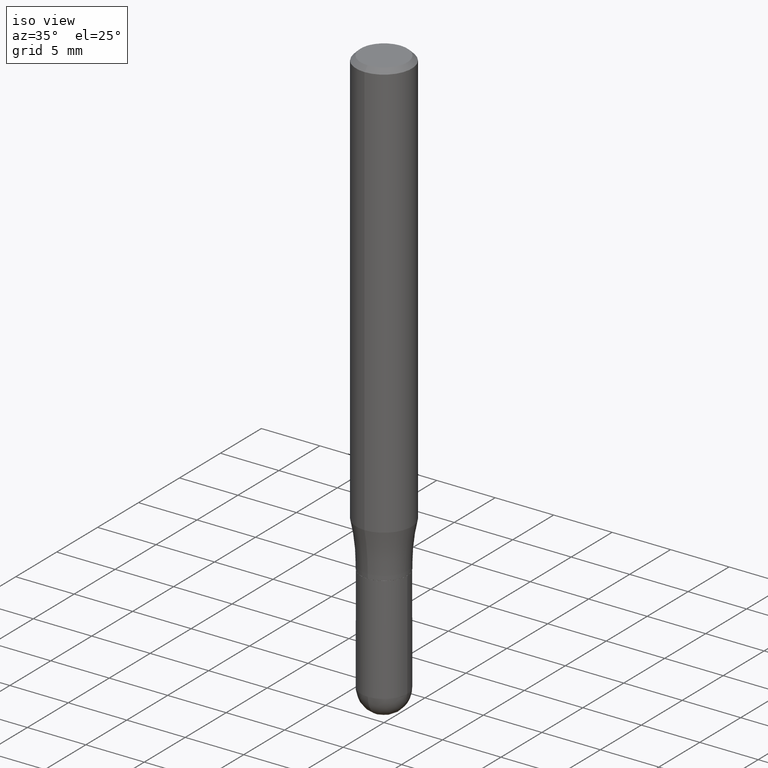
[diagram: clean part render]
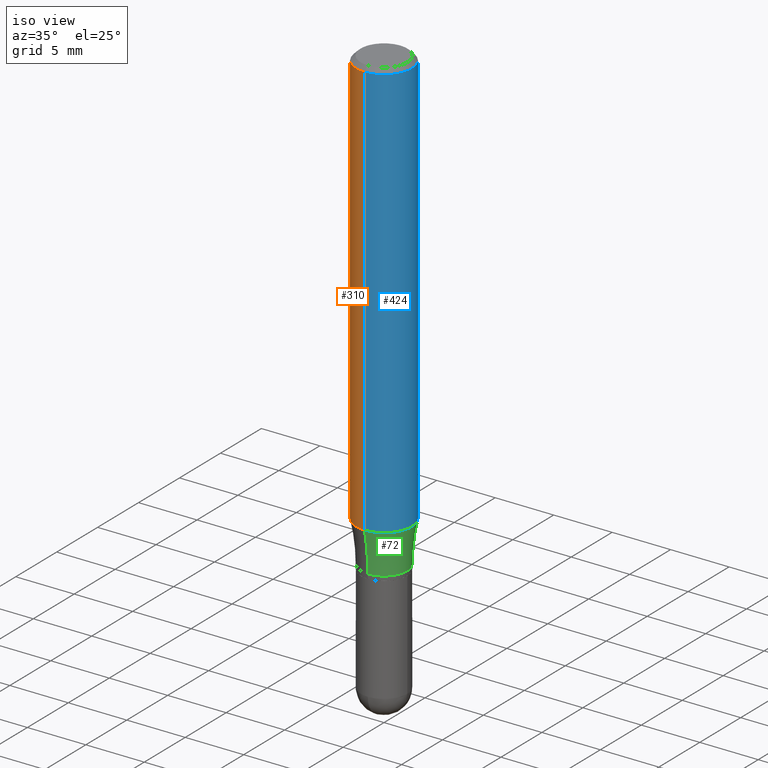
[diagram: same view with three faces highlighted in distinct colors, each labeled with its STEP entity id]
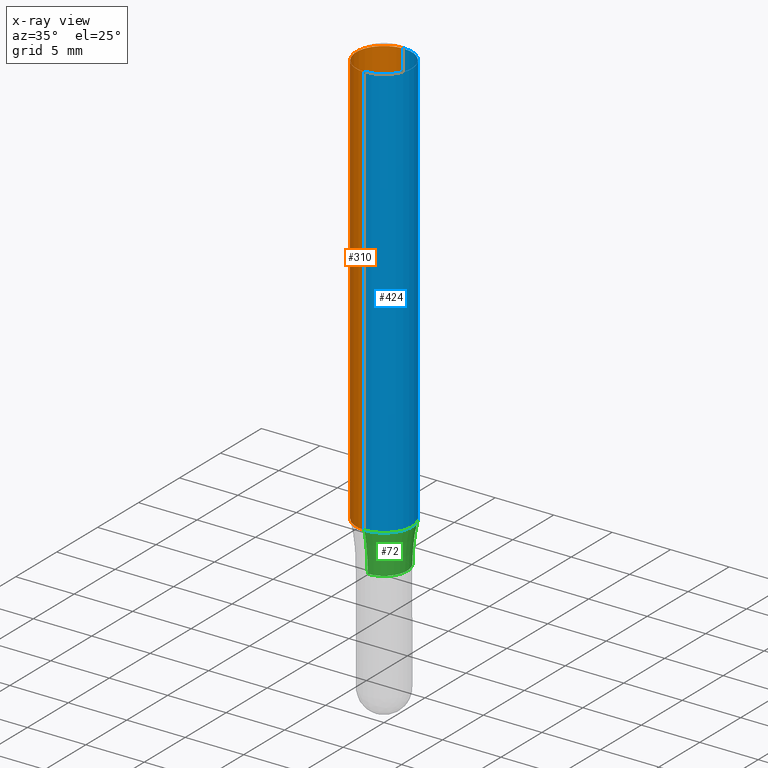
[diagram: x-ray of the same camera — body ghosted, the three highlighted faces saturated]
A machine part, iso view with three faces highlighted in distinct colors.
The next image is the same camera in x-ray (body ghosted, the three faces saturated) — at least one of them is partly hidden behind the body in this view.
Their STEP definitions:

[orange] entity #310 — the highlighted cylindrical surface (edge-blend (fillet) strip) has radius 2.3812 mm, axis along (-0, 0, 1).
#6 = FACE_OUTER_BOUND ( 'NONE', #437, .T. ) ;
#23 = VECTOR ( 'NONE', #249, 39.37007874015748143 ) ;
#59 = LINE ( 'NONE', #179, #23 ) ;
#74 = VERTEX_POINT ( 'NONE', #173 ) ;
#76 = ORIENTED_EDGE ( 'NONE', *, *, #467, .T. ) ;
#92 = CARTESIAN_POINT ( 'NONE',  ( 0.000000000000000000, 0.000000000000000000, 0.000000000000000000 ) ) ;
#96 = AXIS2_PLACEMENT_3D ( 'NONE', #485, #449, #451 ) ;
#129 = CYLINDRICAL_SURFACE ( 'NONE', #445, 0.09374999999999998612 ) ;
#136 = VECTOR ( 'NONE', #399, 39.37007874015748143 ) ;
#149 = ORIENTED_EDGE ( 'NONE', *, *, #495, .F. ) ;
#172 = CARTESIAN_POINT ( 'NONE',  ( 6.546527510330877999E-16, 0.09374999999999994449, -0.01500000000000052854 ) ) ;
#173 = CARTESIAN_POINT ( 'NONE',  ( 6.661338147751289300E-16, 0.09374999999999510114, -1.409012311696322239 ) ) ;
#175 = DIRECTION ( 'NONE',  ( -2.448354798421115077E-29, 3.487348433700747315E-15, 1.000000000000000000 ) ) ;
#177 = CARTESIAN_POINT ( 'NONE',  ( 3.672532197631722186E-31, -5.231022650551191994E-17, -0.01500000000000020241 ) ) ;
#179 = CARTESIAN_POINT ( 'NONE',  ( -6.546527510330874055E-16, -0.09374999999999998612, 3.269389156594450115E-16 ) ) ;
#207 = CARTESIAN_POINT ( 'NONE',  ( -6.431716872910805909E-16, -0.09375000000000004163, -0.01499999999999987628 ) ) ;
#232 = CARTESIAN_POINT ( 'NONE',  ( 6.661338147750937270E-16, 0.09374999999999998612, -3.269389156594450115E-16 ) ) ;
#234 = VERTEX_POINT ( 'NONE', #207 ) ;
#235 = CIRCLE ( 'NONE', #278, 0.09374999999999998612 ) ;
#247 = DIRECTION ( 'NONE',  ( -2.448354798421115077E-29, 3.487348433700747315E-15, 1.000000000000000000 ) ) ;
#249 = DIRECTION ( 'NONE',  ( -2.448354798421115077E-29, 3.487348433700746920E-15, 1.000000000000000000 ) ) ;
#250 = VERTEX_POINT ( 'NONE', #444 ) ;
#255 = EDGE_CURVE ( 'NONE', #74, #250, #477, .T. ) ;
#278 = AXIS2_PLACEMENT_3D ( 'NONE', #177, #175, #500 ) ;
#310 = ADVANCED_FACE ( 'NONE', ( #6 ), #129, .T. ) ;
#321 = DIRECTION ( 'NONE',  ( -6.982962677686266711E-15, -1.000000000000000000, 3.487348433700747315E-15 ) ) ;
#325 = LINE ( 'NONE', #232, #136 ) ;
#358 = VERTEX_POINT ( 'NONE', #172 ) ;
#364 = EDGE_CURVE ( 'NONE', #74, #358, #325, .T. ) ;
#387 = ORIENTED_EDGE ( 'NONE', *, *, #255, .T. ) ;
#395 = ORIENTED_EDGE ( 'NONE', *, *, #364, .F. ) ;
#399 = DIRECTION ( 'NONE',  ( -2.448354798421115077E-29, 3.487348433700746920E-15, 1.000000000000000000 ) ) ;
#437 = EDGE_LOOP ( 'NONE', ( #395, #387, #76, #149 ) ) ;
#444 = CARTESIAN_POINT ( 'NONE',  ( -6.546527510330522026E-16, -0.09375000000000494049, -1.409012311696321795 ) ) ;
#445 = AXIS2_PLACEMENT_3D ( 'NONE', #92, #247, #321 ) ;
#449 = DIRECTION ( 'NONE',  ( -2.448354798421115077E-29, 3.487348433700747315E-15, 1.000000000000000000 ) ) ;
#451 = DIRECTION ( 'NONE',  ( -6.982962677686266711E-15, -1.000000000000000000, 2.913971193241881161E-15 ) ) ;
#467 = EDGE_CURVE ( 'NONE', #250, #234, #59, .T. ) ;
#477 = CIRCLE ( 'NONE', #96, 0.09374999999999998612 ) ;
#485 = CARTESIAN_POINT ( 'NONE',  ( 3.449762054376117352E-29, -4.913716878259238262E-15, -1.409012311696322017 ) ) ;
#495 = EDGE_CURVE ( 'NONE', #358, #234, #235, .T. ) ;
#500 = DIRECTION ( 'NONE',  ( -6.982962677686266711E-15, -1.000000000000000000, 3.483106191921935949E-15 ) ) ;

[blue] entity #424 — the highlighted cylindrical surface (edge-blend (fillet) strip) has radius 2.3812 mm, axis along (-0, 0, 1).
#11 = DIRECTION ( 'NONE',  ( -2.448354798421115077E-29, 3.487348433700747315E-15, 1.000000000000000000 ) ) ;
#15 = CIRCLE ( 'NONE', #342, 0.09374999999999998612 ) ;
#21 = CYLINDRICAL_SURFACE ( 'NONE', #419, 0.09374999999999998612 ) ;
#23 = VECTOR ( 'NONE', #249, 39.37007874015748143 ) ;
#45 = CARTESIAN_POINT ( 'NONE',  ( 3.672532197631722186E-31, -5.231022650551191994E-17, -0.01500000000000020241 ) ) ;
#54 = ORIENTED_EDGE ( 'NONE', *, *, #364, .T. ) ;
#59 = LINE ( 'NONE', #179, #23 ) ;
#74 = VERTEX_POINT ( 'NONE', #173 ) ;
#131 = CARTESIAN_POINT ( 'NONE',  ( 3.449762054376117352E-29, -4.913716878259238262E-15, -1.409012311696322017 ) ) ;
#134 = CIRCLE ( 'NONE', #429, 0.09374999999999998612 ) ;
#135 = DIRECTION ( 'NONE',  ( -2.448354798421115077E-29, 3.487348433700747315E-15, 1.000000000000000000 ) ) ;
#136 = VECTOR ( 'NONE', #399, 39.37007874015748143 ) ;
#138 = ORIENTED_EDGE ( 'NONE', *, *, #257, .F. ) ;
#150 = ORIENTED_EDGE ( 'NONE', *, *, #316, .T. ) ;
#162 = DIRECTION ( 'NONE',  ( -6.982962677686266711E-15, -1.000000000000000000, 3.483106191921935949E-15 ) ) ;
#172 = CARTESIAN_POINT ( 'NONE',  ( 6.546527510330877999E-16, 0.09374999999999994449, -0.01500000000000052854 ) ) ;
#173 = CARTESIAN_POINT ( 'NONE',  ( 6.661338147751289300E-16, 0.09374999999999510114, -1.409012311696322239 ) ) ;
#179 = CARTESIAN_POINT ( 'NONE',  ( -6.546527510330874055E-16, -0.09374999999999998612, 3.269389156594450115E-16 ) ) ;
#207 = CARTESIAN_POINT ( 'NONE',  ( -6.431716872910805909E-16, -0.09375000000000004163, -0.01499999999999987628 ) ) ;
#232 = CARTESIAN_POINT ( 'NONE',  ( 6.661338147750937270E-16, 0.09374999999999998612, -3.269389156594450115E-16 ) ) ;
#234 = VERTEX_POINT ( 'NONE', #207 ) ;
#249 = DIRECTION ( 'NONE',  ( -2.448354798421115077E-29, 3.487348433700746920E-15, 1.000000000000000000 ) ) ;
#250 = VERTEX_POINT ( 'NONE', #444 ) ;
#252 = CARTESIAN_POINT ( 'NONE',  ( 0.000000000000000000, 0.000000000000000000, 0.000000000000000000 ) ) ;
#257 = EDGE_CURVE ( 'NONE', #234, #358, #134, .T. ) ;
#282 = DIRECTION ( 'NONE',  ( -6.982962677686266711E-15, -1.000000000000000000, 2.913971193241881161E-15 ) ) ;
#316 = EDGE_CURVE ( 'NONE', #250, #74, #15, .T. ) ;
#325 = LINE ( 'NONE', #232, #136 ) ;
#338 = DIRECTION ( 'NONE',  ( -6.982962677686266711E-15, -1.000000000000000000, 3.487348433700747315E-15 ) ) ;
#342 = AXIS2_PLACEMENT_3D ( 'NONE', #131, #11, #282 ) ;
#358 = VERTEX_POINT ( 'NONE', #172 ) ;
#364 = EDGE_CURVE ( 'NONE', #74, #358, #325, .T. ) ;
#376 = ORIENTED_EDGE ( 'NONE', *, *, #467, .F. ) ;
#378 = DIRECTION ( 'NONE',  ( -2.448354798421115077E-29, 3.487348433700747315E-15, 1.000000000000000000 ) ) ;
#380 = FACE_OUTER_BOUND ( 'NONE', #509, .T. ) ;
#399 = DIRECTION ( 'NONE',  ( -2.448354798421115077E-29, 3.487348433700746920E-15, 1.000000000000000000 ) ) ;
#419 = AXIS2_PLACEMENT_3D ( 'NONE', #252, #378, #338 ) ;
#424 = ADVANCED_FACE ( 'NONE', ( #380 ), #21, .T. ) ;
#429 = AXIS2_PLACEMENT_3D ( 'NONE', #45, #135, #162 ) ;
#444 = CARTESIAN_POINT ( 'NONE',  ( -6.546527510330522026E-16, -0.09375000000000494049, -1.409012311696321795 ) ) ;
#467 = EDGE_CURVE ( 'NONE', #250, #234, #59, .T. ) ;
#509 = EDGE_LOOP ( 'NONE', ( #150, #54, #138, #376 ) ) ;

[green] entity #72 — the highlighted toroidal blend (fillet) surface has major radius 17.8587 mm and minor (blend) radius 15.875 mm.
#8 = AXIS2_PLACEMENT_3D ( 'NONE', #226, #345, #483 ) ;
#11 = DIRECTION ( 'NONE',  ( -2.448354798421115077E-29, 3.487348433700747315E-15, 1.000000000000000000 ) ) ;
#13 = FACE_OUTER_BOUND ( 'NONE', #123, .T. ) ;
#15 = CIRCLE ( 'NONE', #342, 0.09374999999999998612 ) ;
#22 = TOROIDAL_SURFACE ( 'NONE', #75, 0.7030999999999998362, 0.6250000000000000000 ) ;
#38 = DIRECTION ( 'NONE',  ( -6.982962677686265922E-15, -1.000000000000000000, 3.497884755011870665E-15 ) ) ;
#43 = CARTESIAN_POINT ( 'NONE',  ( 4.995825975129299531E-15, 0.7030999999999942851, -1.548000000000002485 ) ) ;
#64 = DIRECTION ( 'NONE',  ( 7.105427357600999492E-15, 1.000000000000000000, 0.000000000000000000 ) ) ;
#70 = ORIENTED_EDGE ( 'NONE', *, *, #130, .T. ) ;
#72 = ADVANCED_FACE ( 'NONE', ( #13 ), #22, .F. ) ;
#74 = VERTEX_POINT ( 'NONE', #173 ) ;
#75 = AXIS2_PLACEMENT_3D ( 'NONE', #416, #217, #379 ) ;
#83 = ORIENTED_EDGE ( 'NONE', *, *, #372, .F. ) ;
#123 = EDGE_LOOP ( 'NONE', ( #83, #168, #70, #348 ) ) ;
#130 = EDGE_CURVE ( 'NONE', #250, #454, #455, .T. ) ;
#131 = CARTESIAN_POINT ( 'NONE',  ( 3.449762054376117352E-29, -4.913716878259238262E-15, -1.409012311696322017 ) ) ;
#144 = EDGE_CURVE ( 'NONE', #454, #160, #373, .T. ) ;
#153 = CIRCLE ( 'NONE', #181, 0.6250000000000001110 ) ;
#160 = VERTEX_POINT ( 'NONE', #393 ) ;
#168 = ORIENTED_EDGE ( 'NONE', *, *, #316, .F. ) ;
#173 = CARTESIAN_POINT ( 'NONE',  ( 6.661338147751289300E-16, 0.09374999999999510114, -1.409012311696322239 ) ) ;
#181 = AXIS2_PLACEMENT_3D ( 'NONE', #43, #195, #64 ) ;
#195 = DIRECTION ( 'NONE',  ( 1.000000000000000000, -7.105427357601001070E-15, 4.926264895051544158E-29 ) ) ;
#203 = AXIS2_PLACEMENT_3D ( 'NONE', #230, #397, #38 ) ;
#217 = DIRECTION ( 'NONE',  ( -2.448354798421115077E-29, 3.487348433700747315E-15, 1.000000000000000000 ) ) ;
#226 = CARTESIAN_POINT ( 'NONE',  ( -4.909721058681173899E-15, -0.7031000000000052763, -1.547999999999997600 ) ) ;
#230 = CARTESIAN_POINT ( 'NONE',  ( 3.790053227955885371E-29, -5.398415375368757676E-15, -1.548000000000000043 ) ) ;
#250 = VERTEX_POINT ( 'NONE', #444 ) ;
#282 = DIRECTION ( 'NONE',  ( -6.982962677686266711E-15, -1.000000000000000000, 2.913971193241881161E-15 ) ) ;
#316 = EDGE_CURVE ( 'NONE', #250, #74, #15, .T. ) ;
#342 = AXIS2_PLACEMENT_3D ( 'NONE', #131, #11, #282 ) ;
#345 = DIRECTION ( 'NONE',  ( -1.000000000000000000, 6.982962677686265922E-15, -4.883557194083112340E-29 ) ) ;
#348 = ORIENTED_EDGE ( 'NONE', *, *, #144, .T. ) ;
#372 = EDGE_CURVE ( 'NONE', #74, #160, #153, .T. ) ;
#373 = CIRCLE ( 'NONE', #203, 0.07809999999999978071 ) ;
#379 = DIRECTION ( 'NONE',  ( -6.982962677686265922E-15, -1.000000000000000000, 3.487348433700747315E-15 ) ) ;
#393 = CARTESIAN_POINT ( 'NONE',  ( 6.105338457019019877E-16, 0.07809999999999438225, -1.548000000000000265 ) ) ;
#397 = DIRECTION ( 'NONE',  ( -2.448354798421115077E-29, 3.487348433700747315E-15, 1.000000000000000000 ) ) ;
#416 = CARTESIAN_POINT ( 'NONE',  ( 3.785585711974591416E-29, -5.404813112529189619E-15, -1.548000000000000043 ) ) ;
#421 = CARTESIAN_POINT ( 'NONE',  ( -5.453693851272578948E-16, -0.07810000000000516529, -1.547999999999999821 ) ) ;
#444 = CARTESIAN_POINT ( 'NONE',  ( -6.546527510330522026E-16, -0.09375000000000494049, -1.409012311696321795 ) ) ;
#454 = VERTEX_POINT ( 'NONE', #421 ) ;
#455 = CIRCLE ( 'NONE', #8, 0.6250000000000001110 ) ;
#483 = DIRECTION ( 'NONE',  ( -6.982962677686262766E-15, -1.000000000000000000, 0.000000000000000000 ) ) ;